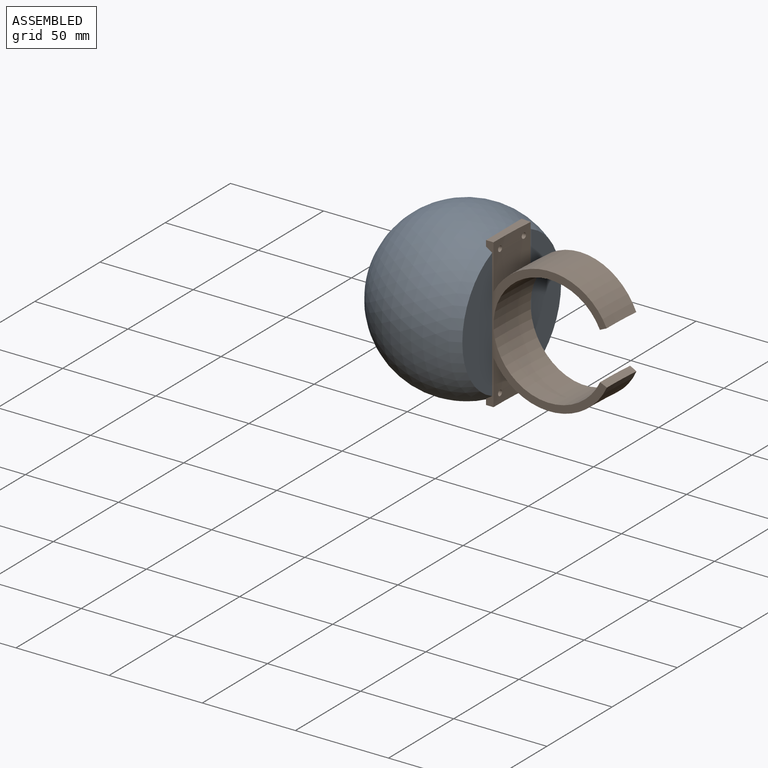
[diagram: assembled view]
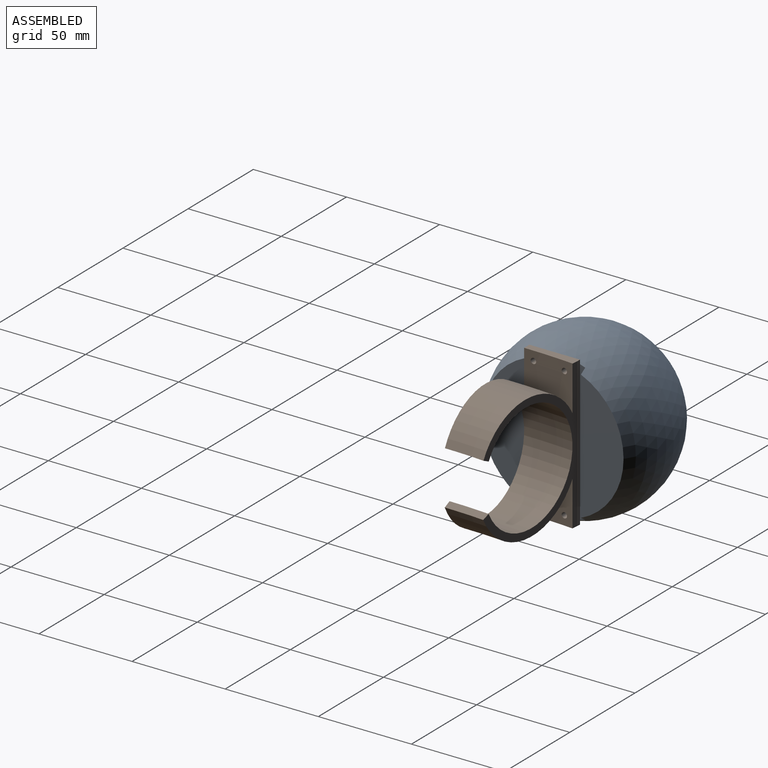
[diagram: assembled view, second angle]
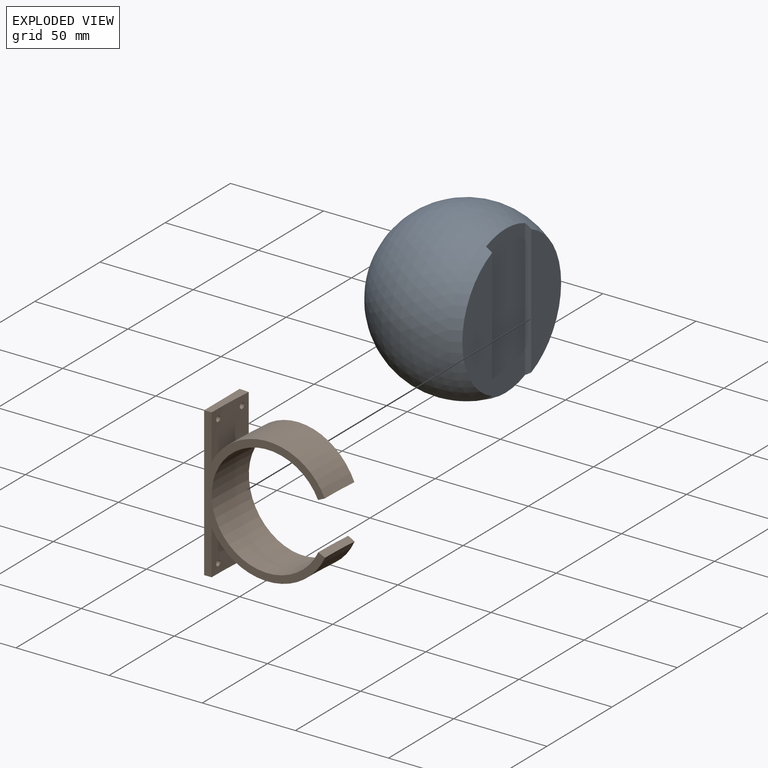
[diagram: exploded view]
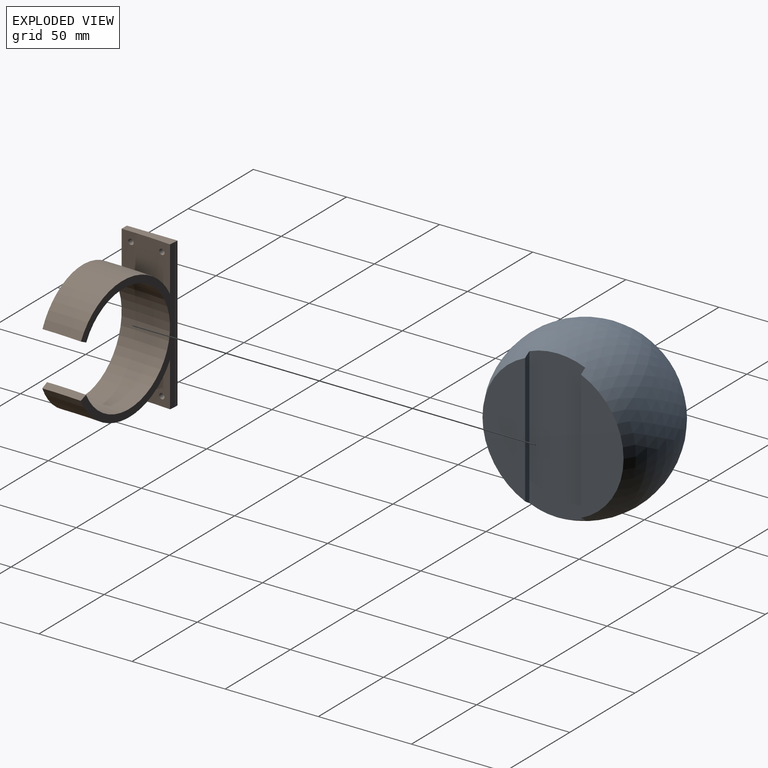
[diagram: exploded view, second angle]
ASSEMBLY  parts=2 mates=2
PART A: 6 faces, bbox 90x90x69.3 mm
  f0: sphere r=45mm, area 19358.7mm2, adj f1,f2,f3,f4,f5
  f1: plane 73.73x3.3mm, normal (-1,0,0), area 236.7mm2, adj f0,f3,f5
  f2: plane 73.73x3.3mm, normal (1,0,0), area 236.7mm2, adj f0,f3,f4
  f3: plane 79.6x30mm, normal (0,0,1), area 2330.2mm2, adj f0,f1,f2
  f4: plane 69.56x22.88mm, normal (0,0,1), area 1147.5mm2, adj f0,f2
  f5: plane 69.56x22.88mm, normal (0,0,1), area 1147.5mm2, adj f0,f1
PART B: 20 faces, bbox 69.3x27.2x80 mm
  f0: plane 27.15x5.2mm, normal (0,0,-1), area 119mm2, adj f1,f9,f10,f11,f13,f15
  f1: cylinder r=299mm len=26.79mm, axis (0,0,1), area 629.6mm2, adj f0,f2,f9,f10,f17,f18
  f2: torus R=269mm, axis (0,0,1), area 1816.2mm2, adj f1,f3,f9,f10
  f3: cone r=238.12mm half-angle=65.3deg, axis (0,0,1), area 86.1mm2, adj f2,f4,f9,f10
  f4: torus R=269mm, axis (0,0,1), area 3985.4mm2, adj f3,f5,f9,f10
  f5: cone r=241.87mm half-angle=65deg, axis (0,0,-1), area 86.1mm2, adj f4,f6,f9,f10
  f6: torus R=269mm, axis (0,0,1), area 1809.7mm2, adj f5,f7,f9,f10
  f7: cylinder r=299mm len=26.79mm, axis (0,0,1), area 629.6mm2, adj f6,f8,f9,f10,f16,f19
  f8: plane 27.15x5.2mm, normal (0,0,1), area 108mm2, adj f7,f9,f10,f12,f14
  f9: plane 80x64.06mm, normal (0.09,1,0), area 881.3mm2, adj f0,f1,f2,f3,f4,f5,f6,f7
  f10: plane 80x64.88mm, normal (0,-1,0), area 926.2mm2, adj f0,f1,f2,f3,f4,f5,f6,f7
  f11: plane 80x1.78mm, normal (0,1,0), area 142.2mm2, adj f0,f12,f13,f14,f15
  f12: plane 27.15x1.22mm, normal (0,0,1), area 11mm2, adj f8,f11,f15
  f13: plane 80x0.05mm, normal (1,0,0), area 4mm2, adj f0,f9,f11,f14
  f14: plane 0.56x0.05mm, normal (0,0,1), area 0mm2, adj f8,f11,f13
  f15: plane 80x27.15mm, normal (-1,0,0), area 2143.4mm2, adj f0,f10,f11,f12,f16,f17,f18,f19
  f16: cylinder r=1.5mm len=4.82mm, axis (-1,0,0), area 45.4mm2, adj f7,f15
  f17: cylinder r=1.5mm len=4.04mm, axis (-1,0,0), area 38.1mm2, adj f1,f15
  f18: cylinder r=1.5mm len=4.82mm, axis (-1,0,0), area 45.4mm2, adj f1,f15
  f19: cylinder r=1.5mm len=4.04mm, axis (-1,0,0), area 38.1mm2, adj f7,f15
PLACE A rot(axis=(0.58,0.58,0.58),120deg) t=(-37.12,27.01,-0.3)mm
PLACE B t=(-16.12,12.01,-40.3)mm
MATE planar A.f2 <-> B.f10  axis (0,1,0) through (-14.49,12.01,-0.3)mm
MATE planar A.f3 <-> B.f15  axis (1,0,0) through (-16.12,27.01,-0.3)mm
